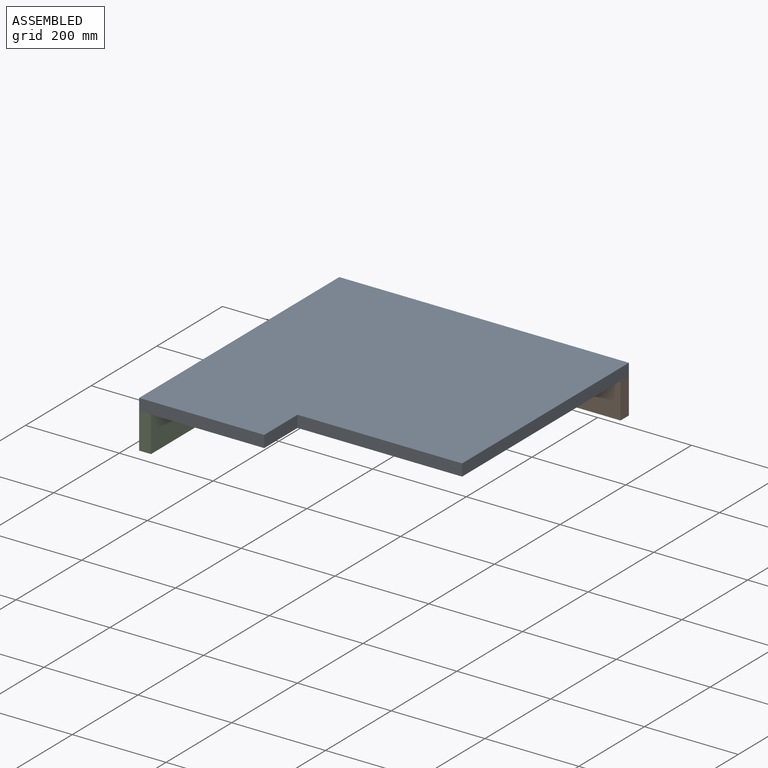
[diagram: assembled view]
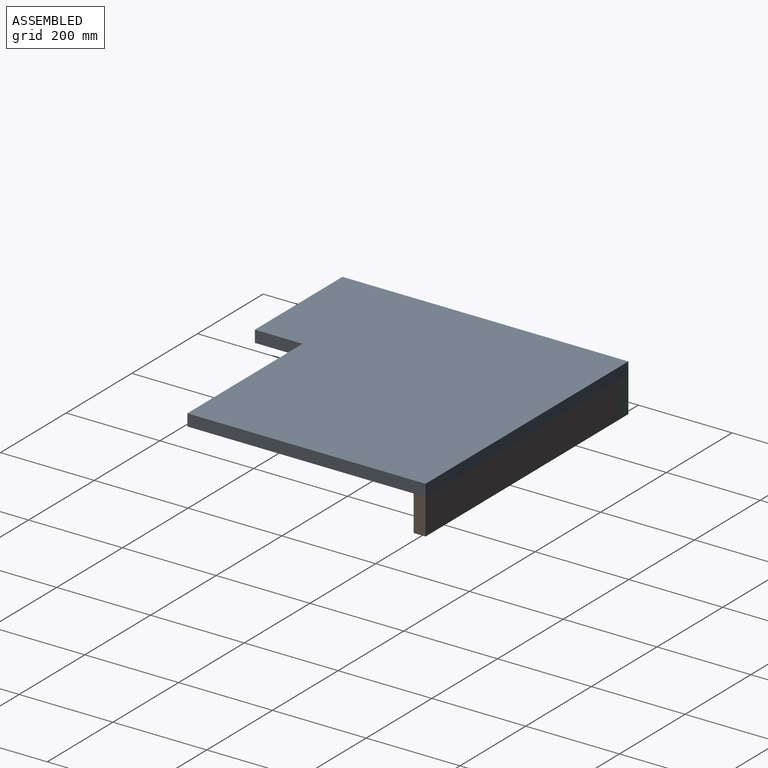
[diagram: assembled view, second angle]
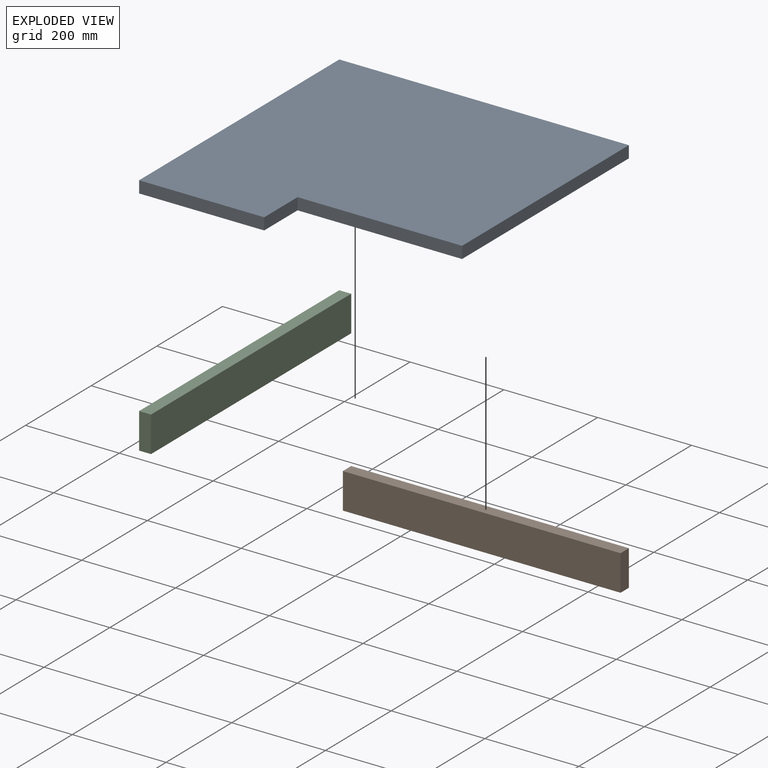
[diagram: exploded view]
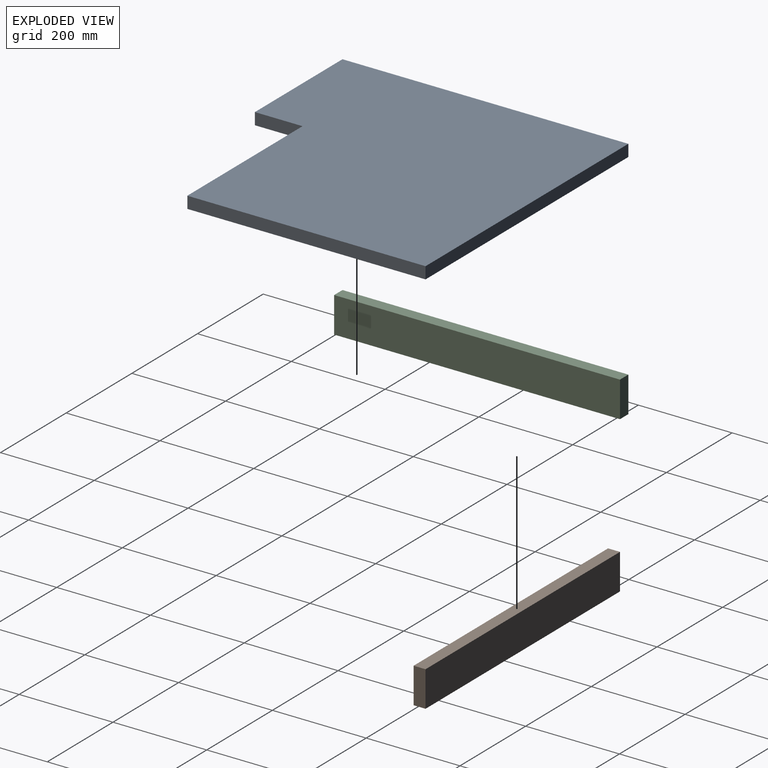
[diagram: exploded view, second angle]
ASSEMBLY  parts=3 mates=3
PART A: 8 faces, bbox 617.6x609.6x25.4 mm
  f0: plane 617.55x25.4mm, normal (0,1,0), area 15685.8mm2, adj f1,f5,f6,f7
  f1: plane 609.6x25.4mm, normal (-1,0,0), area 15483.8mm2, adj f0,f2,f6,f7
  f2: plane 266.7x25.4mm, normal (0,-1,0), area 6774.2mm2, adj f1,f3,f6,f7
  f3: plane 101.6x25.4mm, normal (1,0,0), area 2580.6mm2, adj f2,f4,f6,f7
  f4: plane 350.85x25.4mm, normal (0,-1,0), area 8911.6mm2, adj f3,f5,f6,f7
  f5: plane 508x25.4mm, normal (1,0,0), area 12903.2mm2, adj f0,f4,f6,f7
  f6: plane 617.55x609.6mm, normal (0,0,1), area 340812.2mm2, adj f0,f1,f2,f3,f4,f5
  f7: plane 617.55x609.6mm, normal (0,0,-1), area 340812.2mm2, adj f0,f1,f2,f3,f4,f5
PART B: 6 faces, bbox 592.2x25.4x76.2 mm
  f0: plane 592.15x25.4mm, normal (0,0,-1), area 15040.6mm2, adj f1,f3,f4,f5
  f1: plane 76.2x25.4mm, normal (1,0,0), area 1935.5mm2, adj f0,f2,f4,f5
  f2: plane 592.15x25.4mm, normal (0,0,1), area 15040.6mm2, adj f1,f3,f4,f5
  f3: plane 76.2x25.4mm, normal (-1,0,0), area 1935.5mm2, adj f0,f2,f4,f5
  f4: plane 592.15x76.2mm, normal (0,-1,0), area 45121.8mm2, adj f0,f1,f2,f3
  f5: plane 592.15x76.2mm, normal (0,1,0), area 45121.8mm2, adj f0,f1,f2,f3
PART C: 6 faces, bbox 25.4x609.6x76.2 mm
  f0: plane 609.6x25.4mm, normal (0,0,1), area 15483.8mm2, adj f1,f3,f4,f5
  f1: plane 76.2x25.4mm, normal (0,1,0), area 1935.5mm2, adj f0,f2,f4,f5
  f2: plane 609.6x25.4mm, normal (0,0,-1), area 15483.8mm2, adj f1,f3,f4,f5
  f3: plane 76.2x25.4mm, normal (0,-1,0), area 1935.5mm2, adj f0,f2,f4,f5
  f4: plane 609.6x76.2mm, normal (-1,0,0), area 46451.5mm2, adj f0,f1,f2,f3
  f5: plane 609.6x76.2mm, normal (1,0,0), area 46451.5mm2, adj f0,f1,f2,f3
PLACE A t=(-431.55,31.79,-26.48)mm
PLACE B t=(-431.55,31.79,-26.48)mm
PLACE C t=(-431.55,31.79,-26.48)mm
MATE fastened B.f3 <-> C.f5  axis (-1,0,0) through (-727.63,31.79,-26.48)mm
MATE fastened A.f7 <-> C.f0  axis (0,0,-1) through (-753.03,-273.01,11.62)mm
MATE fastened A.f7 <-> B.f2  axis (0,0,-1) through (-431.55,31.79,11.62)mm
